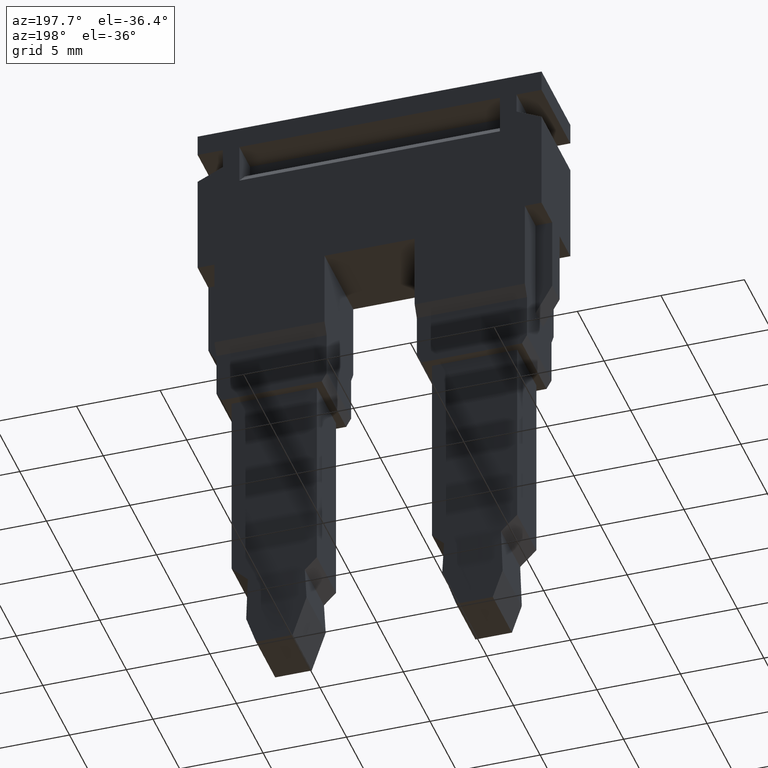
[diagram: clean part render]
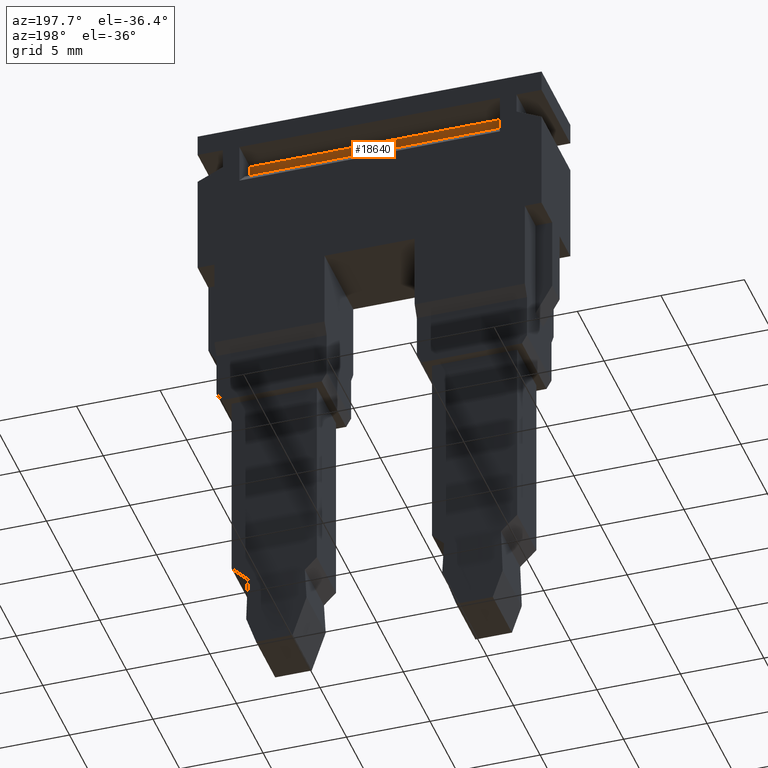
[diagram: same view with one face highlighted and labeled with its STEP entity id]
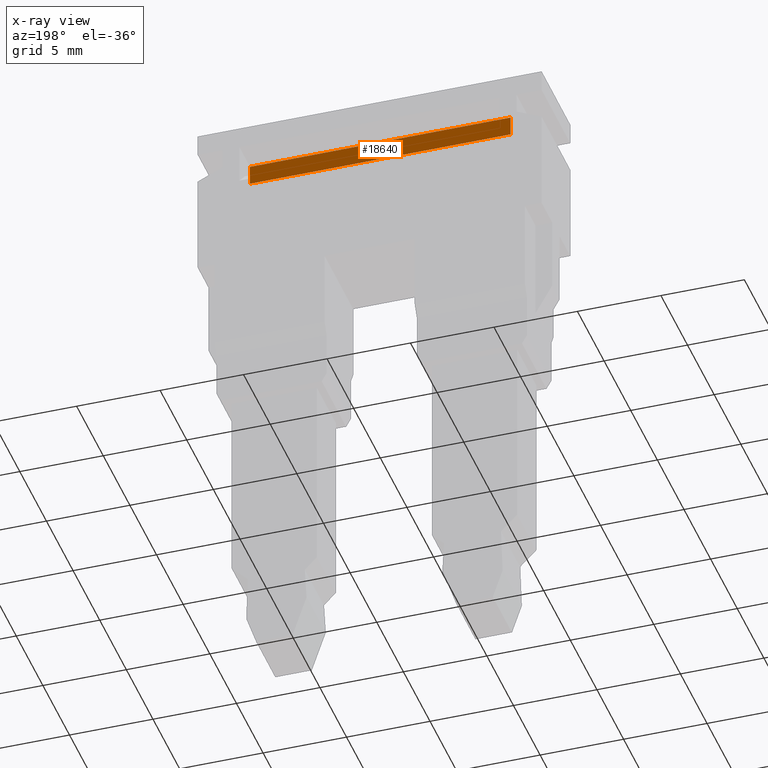
[diagram: x-ray of the same camera — body ghosted, the highlighted face saturated]
A machine part, auxiliary view. The second image highlights one B-rep face of the part: STEP entity #18640.
The next image is the same camera in x-ray: the body ghosted, the highlighted face saturated — about 0% of this face is hidden behind the body in this view.
In plain terms, the highlighted planar face has unit normal (-0, 1, -0).
Its self-contained STEP definition (entity closure, byte-faithful):
#16510=CARTESIAN_POINT('',(-9.15000000000002,44.1960271983001,
9.69999999999999));
#16520=VERTEX_POINT('',#16510);
#16550=CARTESIAN_POINT('',(-9.15000000000002,26.7540884716326,
9.69999999999999));
#16560=DIRECTION('',(0.,-1.,0.));
#16570=VECTOR('',#16560,1.);
#16580=LINE('',#16550,#16570);
#16590=CARTESIAN_POINT('',(-9.15000000000001,42.9960271983001,
9.69999999999999));
#16600=VERTEX_POINT('',#16590);
#16610=EDGE_CURVE('',#16520,#16600,#16580,.T.);
#18140=CARTESIAN_POINT('',(-9.15000000000002,42.9960271983001,
-5.90000000000002));
#18150=VERTEX_POINT('',#18140);
#18180=CARTESIAN_POINT('',(-9.15000000000002,26.7540884716326,
-5.90000000000002));
#18190=DIRECTION('',(0.,-1.,0.));
#18200=VECTOR('',#18190,1.);
#18210=LINE('',#18180,#18200);
#18220=CARTESIAN_POINT('',(-9.15000000000002,44.1960271983001,
-5.90000000000002));
#18230=VERTEX_POINT('',#18220);
#18240=EDGE_CURVE('',#18230,#18150,#18210,.T.);
#18430=CARTESIAN_POINT('',(-9.15000000000002,42.9960271983001,1.9));
#18440=DIRECTION('',(1.,0.,0.));
#18450=DIRECTION('',(0.,-1.,0.));
#18460=AXIS2_PLACEMENT_3D('',#18430,#18440,#18450);
#18470=PLANE('',#18460);
#18480=CARTESIAN_POINT('',(-9.15000000000002,42.9960271983001,
-5.60000000000002));
#18490=DIRECTION('',(0.,0.,1.));
#18500=VECTOR('',#18490,1.);
#18510=LINE('',#18480,#18500);
#18520=EDGE_CURVE('',#18150,#16600,#18510,.T.);
#18530=ORIENTED_EDGE('',*,*,#18520,.F.);
#18540=ORIENTED_EDGE('',*,*,#16610,.T.);
#18550=CARTESIAN_POINT('',(-9.15000000000002,44.1960271983001,
-5.60000000000002));
#18560=DIRECTION('',(0.,0.,1.));
#18570=VECTOR('',#18560,1.);
#18580=LINE('',#18550,#18570);
#18590=EDGE_CURVE('',#18230,#16520,#18580,.T.);
#18600=ORIENTED_EDGE('',*,*,#18590,.T.);
#18610=ORIENTED_EDGE('',*,*,#18240,.F.);
#18620=EDGE_LOOP('',(#18610,#18600,#18540,#18530));
#18630=FACE_OUTER_BOUND('',#18620,.T.);
#18640=ADVANCED_FACE('',(#18630),#18470,.T.);